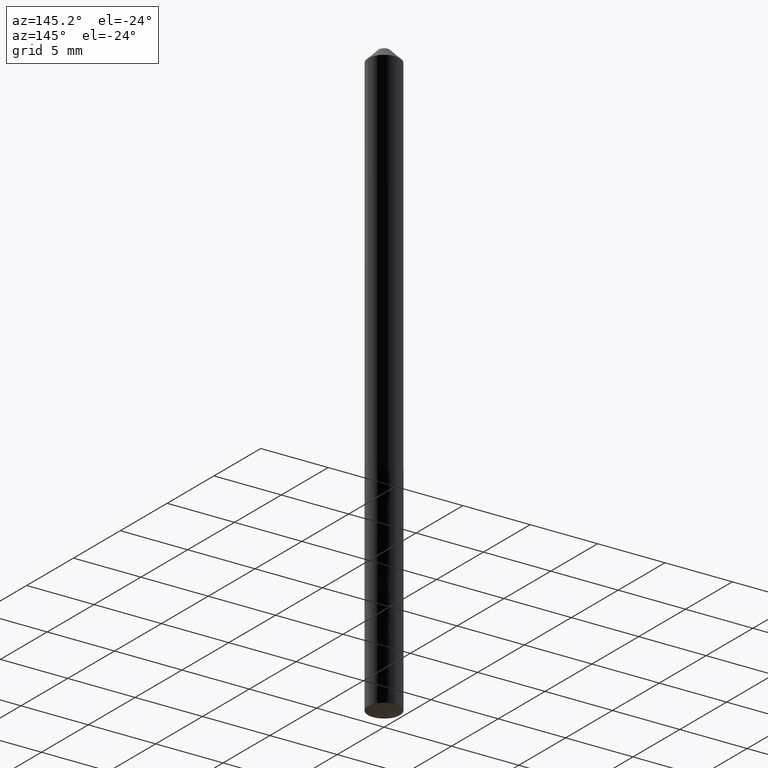
[diagram: clean part render]
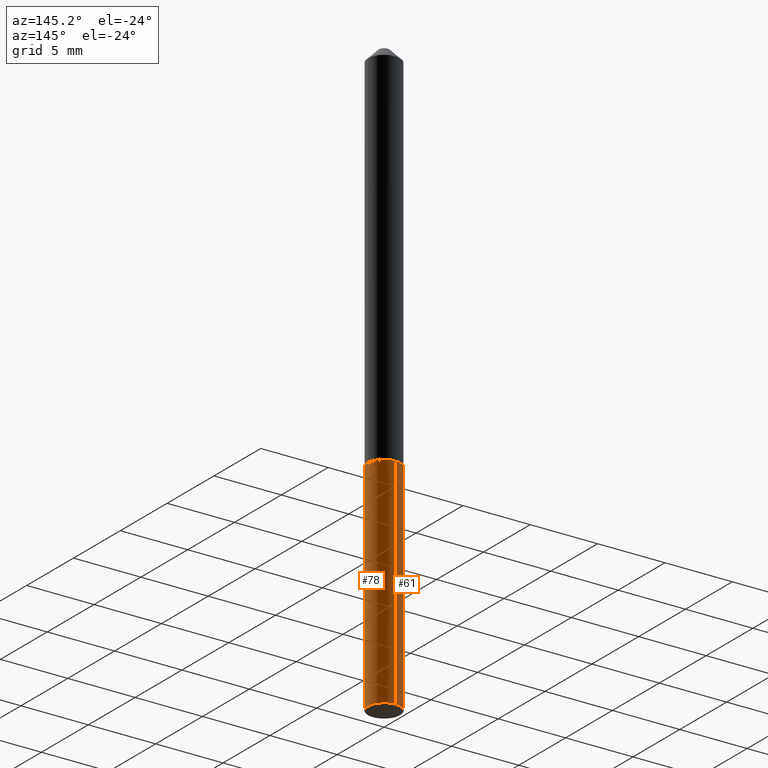
[diagram: same view with one multi-face feature highlighted, each face labeled with its STEP entity id]
A machine part, auxiliary view. The highlighted faces form ONE feature: a constant-radius fillet chain: 2 tangent blend faces with common blend radius 1.1913 mm. The faces share edges in the B-rep.
Their STEP definitions:
[1] entity #61 (Cylinder):
#10 = CARTESIAN_POINT ( 'NONE',  ( 2.674853780205301984E-29, -3.818982288426632668E-15, -1.093799999999999883 ) ) ;
#45 = DIRECTION ( 'NONE',  ( -2.445236221717510634E-29, 3.491814413038671923E-15, 1.000000000000000000 ) ) ;
#52 = DIRECTION ( 'NONE',  ( -2.445236221717510634E-29, 3.491814413038671923E-15, 1.000000000000000000 ) ) ;
#55 = EDGE_CURVE ( 'NONE', #260, #118, #265, .T. ) ;
#56 = ORIENTED_EDGE ( 'NONE', *, *, #212, .F. ) ;
#60 = VERTEX_POINT ( 'NONE', #294 ) ;
#61 = ADVANCED_FACE ( 'NONE', ( #80 ), #176, .T. ) ;
#63 = CARTESIAN_POINT ( 'NONE',  ( -3.275009495834435504E-16, -0.04690000000000605490, -1.732929796012915080 ) ) ;
#71 = CARTESIAN_POINT ( 'NONE',  ( 3.332445430715136903E-16, 0.04689999999999618085, -1.093800000000000106 ) ) ;
#80 = FACE_OUTER_BOUND ( 'NONE', #244, .T. ) ;
#91 = AXIS2_PLACEMENT_3D ( 'NONE', #272, #116, #243 ) ;
#116 = DIRECTION ( 'NONE',  ( -2.445236221717510634E-29, 3.491814413038671923E-15, 1.000000000000000000 ) ) ;
#118 = VERTEX_POINT ( 'NONE', #180 ) ;
#121 = EDGE_CURVE ( 'NONE', #60, #118, #348, .T. ) ;
#138 = DIRECTION ( 'NONE',  ( -2.445236221717510634E-29, 3.491814413038671923E-15, 1.000000000000000000 ) ) ;
#155 = ORIENTED_EDGE ( 'NONE', *, *, #313, .T. ) ;
#161 = CARTESIAN_POINT ( 'NONE',  ( 3.332445430715293689E-16, 0.04689999999999395347, -1.732929796012915524 ) ) ;
#167 = VERTEX_POINT ( 'NONE', #161 ) ;
#170 = DIRECTION ( 'NONE',  ( -2.445236221717510634E-29, 3.491814413038671923E-15, 1.000000000000000000 ) ) ;
#174 = DIRECTION ( 'NONE',  ( -6.982962677686266711E-15, -1.000000000000000000, 2.912417903693244499E-15 ) ) ;
#176 = CYLINDRICAL_SURFACE ( 'NONE', #339, 0.04689999999999999725 ) ;
#180 = CARTESIAN_POINT ( 'NONE',  ( -3.275009495834591304E-16, -0.04690000000000381364, -1.093799999999999883 ) ) ;
#187 = ORIENTED_EDGE ( 'NONE', *, *, #55, .T. ) ;
#212 = EDGE_CURVE ( 'NONE', #167, #60, #227, .T. ) ;
#213 = ORIENTED_EDGE ( 'NONE', *, *, #121, .F. ) ;
#227 = LINE ( 'NONE', #71, #255 ) ;
#243 = DIRECTION ( 'NONE',  ( -6.982962677686266711E-15, -1.000000000000000000, 2.912417903693244499E-15 ) ) ;
#244 = EDGE_LOOP ( 'NONE', ( #56, #155, #187, #213 ) ) ;
#254 = VECTOR ( 'NONE', #52, 39.37007874015748143 ) ;
#255 = VECTOR ( 'NONE', #138, 39.37007874015748143 ) ;
#257 = CARTESIAN_POINT ( 'NONE',  ( -3.275009495834591304E-16, -0.04690000000000381364, -1.093799999999999883 ) ) ;
#260 = VERTEX_POINT ( 'NONE', #63 ) ;
#262 = DIRECTION ( 'NONE',  ( -6.982962677686266711E-15, -1.000000000000000000, 5.824835807386488998E-15 ) ) ;
#265 = LINE ( 'NONE', #257, #254 ) ;
#270 = AXIS2_PLACEMENT_3D ( 'NONE', #370, #170, #262 ) ;
#272 = CARTESIAN_POINT ( 'NONE',  ( 2.674853780205301984E-29, -3.818982288426632668E-15, -1.093799999999999883 ) ) ;
#294 = CARTESIAN_POINT ( 'NONE',  ( 3.332445430715294675E-16, 0.04689999999999618085, -1.093800000000000106 ) ) ;
#313 = EDGE_CURVE ( 'NONE', #167, #260, #384, .T. ) ;
#339 = AXIS2_PLACEMENT_3D ( 'NONE', #10, #45, #174 ) ;
#348 = CIRCLE ( 'NONE', #91, 0.04689999999999999725 ) ;
#370 = CARTESIAN_POINT ( 'NONE',  ( 4.237677107795006876E-29, -6.050704921946997254E-15, -1.732929796012915302 ) ) ;
#384 = CIRCLE ( 'NONE', #270, 0.04689999999999999725 ) ;
[2] entity #78 (Cylinder):
#11 = DIRECTION ( 'NONE',  ( -2.445236221717510634E-29, 3.491814413038671923E-15, 1.000000000000000000 ) ) ;
#25 = ORIENTED_EDGE ( 'NONE', *, *, #388, .F. ) ;
#37 = DIRECTION ( 'NONE',  ( -6.982962677686266711E-15, -1.000000000000000000, 5.824835807386488998E-15 ) ) ;
#40 = CARTESIAN_POINT ( 'NONE',  ( 2.674853780205301984E-29, -3.818982288426632668E-15, -1.093799999999999883 ) ) ;
#42 = CYLINDRICAL_SURFACE ( 'NONE', #273, 0.04689999999999999725 ) ;
#52 = DIRECTION ( 'NONE',  ( -2.445236221717510634E-29, 3.491814413038671923E-15, 1.000000000000000000 ) ) ;
#55 = EDGE_CURVE ( 'NONE', #260, #118, #265, .T. ) ;
#58 = CIRCLE ( 'NONE', #323, 0.04689999999999999725 ) ;
#60 = VERTEX_POINT ( 'NONE', #294 ) ;
#62 = CARTESIAN_POINT ( 'NONE',  ( 4.237677107795006876E-29, -6.050704921946997254E-15, -1.732929796012915302 ) ) ;
#63 = CARTESIAN_POINT ( 'NONE',  ( -3.275009495834435504E-16, -0.04690000000000605490, -1.732929796012915080 ) ) ;
#65 = DIRECTION ( 'NONE',  ( -2.445236221717510634E-29, 3.491814413038671923E-15, 1.000000000000000000 ) ) ;
#71 = CARTESIAN_POINT ( 'NONE',  ( 3.332445430715136903E-16, 0.04689999999999618085, -1.093800000000000106 ) ) ;
#78 = ADVANCED_FACE ( 'NONE', ( #139 ), #42, .T. ) ;
#118 = VERTEX_POINT ( 'NONE', #180 ) ;
#137 = ORIENTED_EDGE ( 'NONE', *, *, #143, .T. ) ;
#138 = DIRECTION ( 'NONE',  ( -2.445236221717510634E-29, 3.491814413038671923E-15, 1.000000000000000000 ) ) ;
#139 = FACE_OUTER_BOUND ( 'NONE', #151, .T. ) ;
#143 = EDGE_CURVE ( 'NONE', #260, #167, #58, .T. ) ;
#151 = EDGE_LOOP ( 'NONE', ( #137, #184, #25, #278 ) ) ;
#161 = CARTESIAN_POINT ( 'NONE',  ( 3.332445430715293689E-16, 0.04689999999999395347, -1.732929796012915524 ) ) ;
#167 = VERTEX_POINT ( 'NONE', #161 ) ;
#169 = DIRECTION ( 'NONE',  ( -2.445236221717510634E-29, 3.491814413038671923E-15, 1.000000000000000000 ) ) ;
#180 = CARTESIAN_POINT ( 'NONE',  ( -3.275009495834591304E-16, -0.04690000000000381364, -1.093799999999999883 ) ) ;
#184 = ORIENTED_EDGE ( 'NONE', *, *, #212, .T. ) ;
#192 = AXIS2_PLACEMENT_3D ( 'NONE', #40, #11, #289 ) ;
#212 = EDGE_CURVE ( 'NONE', #167, #60, #227, .T. ) ;
#227 = LINE ( 'NONE', #71, #255 ) ;
#254 = VECTOR ( 'NONE', #52, 39.37007874015748143 ) ;
#255 = VECTOR ( 'NONE', #138, 39.37007874015748143 ) ;
#257 = CARTESIAN_POINT ( 'NONE',  ( -3.275009495834591304E-16, -0.04690000000000381364, -1.093799999999999883 ) ) ;
#260 = VERTEX_POINT ( 'NONE', #63 ) ;
#265 = LINE ( 'NONE', #257, #254 ) ;
#273 = AXIS2_PLACEMENT_3D ( 'NONE', #298, #169, #292 ) ;
#278 = ORIENTED_EDGE ( 'NONE', *, *, #55, .F. ) ;
#289 = DIRECTION ( 'NONE',  ( -6.982962677686266711E-15, -1.000000000000000000, 2.912417903693244499E-15 ) ) ;
#292 = DIRECTION ( 'NONE',  ( -6.982962677686266711E-15, -1.000000000000000000, 2.912417903693244499E-15 ) ) ;
#294 = CARTESIAN_POINT ( 'NONE',  ( 3.332445430715294675E-16, 0.04689999999999618085, -1.093800000000000106 ) ) ;
#298 = CARTESIAN_POINT ( 'NONE',  ( 2.674853780205301984E-29, -3.818982288426632668E-15, -1.093799999999999883 ) ) ;
#323 = AXIS2_PLACEMENT_3D ( 'NONE', #62, #65, #37 ) ;
#349 = CIRCLE ( 'NONE', #192, 0.04689999999999999725 ) ;
#388 = EDGE_CURVE ( 'NONE', #118, #60, #349, .T. ) ;